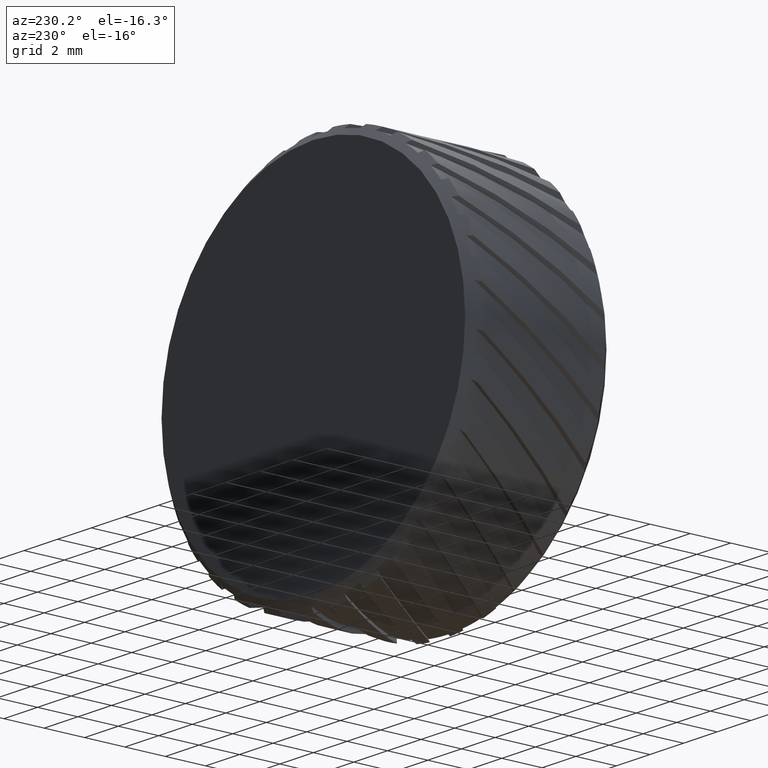
[diagram: clean part render]
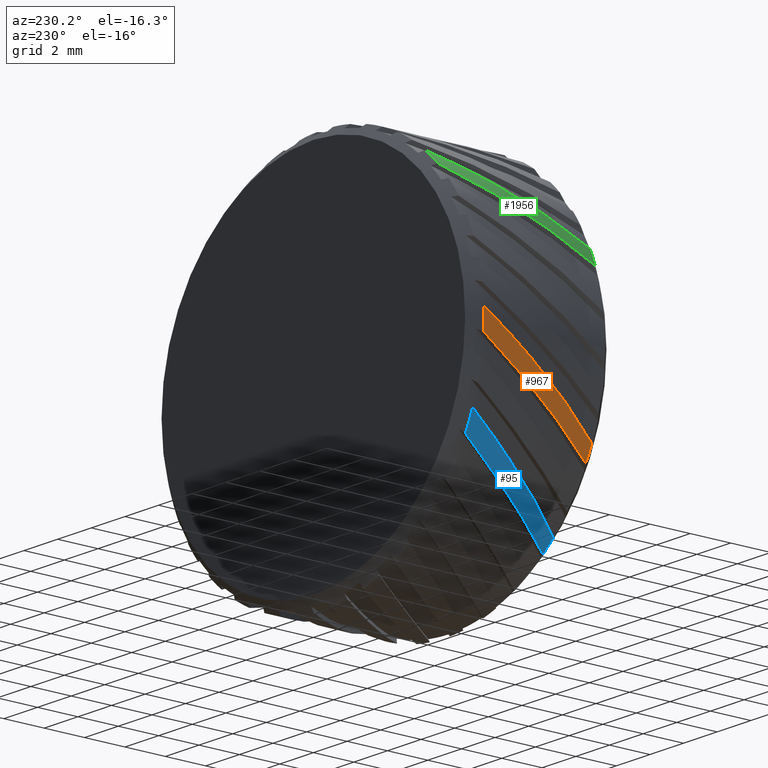
[diagram: same view with three faces highlighted in distinct colors, each labeled with its STEP entity id]
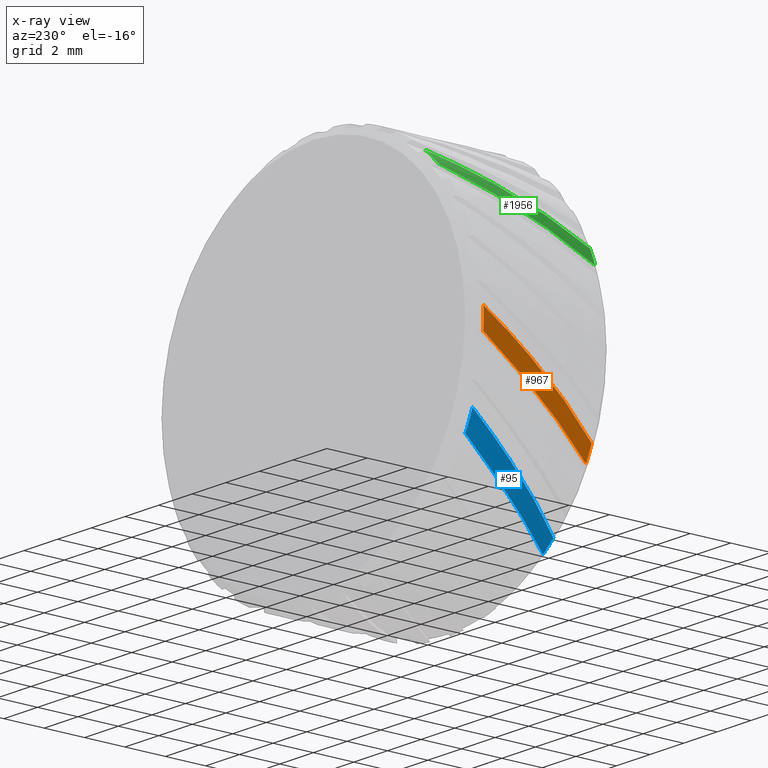
[diagram: x-ray of the same camera — body ghosted, the three highlighted faces saturated]
A machine part, auxiliary view with three faces highlighted in distinct colors.
The next image is the same camera in x-ray (body ghosted, the three faces saturated) — at least one of them is partly hidden behind the body in this view.
Their STEP definitions:

[orange] entity #967 — the highlighted cylindrical surface (partial cylindrical patch) has radius 9.525 mm, axis along (-0, 1, -0).
#543 = EDGE_CURVE ( 'NONE', #715, #3515, #994, .T. ) ;
#715 = VERTEX_POINT ( 'NONE', #2157 ) ;
#967 = ADVANCED_FACE ( 'NONE', ( #4590 ), #3784, .T. ) ;
#972 = DIRECTION ( 'NONE',  ( -0.0000000000000000000, 1.000000000000000000, -0.0000000000000000000 ) ) ;
#994 = CIRCLE ( 'NONE', #2143, 9.525000000000007500 ) ;
#1085 = CARTESIAN_POINT ( 'NONE',  ( -8.751611046570767300, -12.83088448223190900, -3.759644808960105800 ) ) ;
#1186 = CARTESIAN_POINT ( 'NONE',  ( -9.506146567473305000, -6.830884482231916800, -0.5990012000953320900 ) ) ;
#1440 = AXIS2_PLACEMENT_3D ( 'NONE', #2900, #3272, #1797 ) ;
#1502 = CARTESIAN_POINT ( 'NONE',  ( -9.047224436865079200, -11.01875353153871000, -3.277269106192825200 ) ) ;
#1633 = DIRECTION ( 'NONE',  ( 0.0000000000000000000, 0.0000000000000000000, 1.000000000000000000 ) ) ;
#1797 = DIRECTION ( 'NONE',  ( 0.0000000000000000000, 0.0000000000000000000, -1.000000000000000000 ) ) ;
#1806 = ORIENTED_EDGE ( 'NONE', *, *, #3292, .T. ) ;
#2068 = CARTESIAN_POINT ( 'NONE',  ( -9.515343617041804000, -6.830884482231916800, 0.4287899831175072700 ) ) ;
#2103 = CARTESIAN_POINT ( 'NONE',  ( -9.506146567473305000, -6.830884482231916800, -0.5990012000953320900 ) ) ;
#2143 = AXIS2_PLACEMENT_3D ( 'NONE', #3907, #972, #4223 ) ;
#2157 = CARTESIAN_POINT ( 'NONE',  ( -8.404118494825620900, -12.83088448223190700, -4.482902778884473500 ) ) ;
#2250 = CARTESIAN_POINT ( 'NONE',  ( -9.420215363949427700, -8.988001667723397100, -1.962729044525941800 ) ) ;
#2478 = VERTEX_POINT ( 'NONE', #4628 ) ;
#2555 = EDGE_CURVE ( 'NONE', #3515, #2478, #4399, .T. ) ;
#2740 = DIRECTION ( 'NONE',  ( -0.0000000000000000000, 1.000000000000000000, -0.0000000000000000000 ) ) ;
#2772 = CIRCLE ( 'NONE', #1440, 9.525000000000007500 ) ;
#2900 = CARTESIAN_POINT ( 'NONE',  ( 0.0000000000000000000, -6.830884482231916800, 0.0000000000000000000 ) ) ;
#2905 =( BOUNDED_CURVE ( )  B_SPLINE_CURVE ( 3, ( #1186, #2250, #1502, #3747 ),
 .UNSPECIFIED., .F., .F. ) 
 B_SPLINE_CURVE_WITH_KNOTS ( ( 4, 4 ),
 ( 1.738444872137412400, 2.165538831819180800 ),
 .UNSPECIFIED. ) 
 CURVE ( )  GEOMETRIC_REPRESENTATION_ITEM ( )  RATIONAL_B_SPLINE_CURVE ( ( 1.000000000000000000, 0.9848569072552557600, 0.9848569072552557600, 1.000000000000000000 ) ) 
 REPRESENTATION_ITEM ( '' )  );
#3203 = CARTESIAN_POINT ( 'NONE',  ( -9.321382424912270500, -11.09318665708719300, -2.433344655065367200 ) ) ;
#3272 = DIRECTION ( 'NONE',  ( 0.0000000000000000000, -1.000000000000000000, 0.0000000000000000000 ) ) ;
#3292 = EDGE_CURVE ( 'NONE', #2478, #3387, #2772, .T. ) ;
#3387 = VERTEX_POINT ( 'NONE', #2103 ) ;
#3459 = ORIENTED_EDGE ( 'NONE', *, *, #4204, .T. ) ;
#3507 = AXIS2_PLACEMENT_3D ( 'NONE', #4615, #2740, #1633 ) ;
#3515 = VERTEX_POINT ( 'NONE', #1085 ) ;
#3747 = CARTESIAN_POINT ( 'NONE',  ( -8.404118494825620900, -12.83088448223190700, -4.482902778884473500 ) ) ;
#3774 = ORIENTED_EDGE ( 'NONE', *, *, #543, .T. ) ;
#3784 = CYLINDRICAL_SURFACE ( 'NONE', #3507, 9.525000000000007500 ) ;
#3907 = CARTESIAN_POINT ( 'NONE',  ( 0.0000000000000000000, -12.83088448223190900, 0.0000000000000000000 ) ) ;
#3920 = EDGE_LOOP ( 'NONE', ( #1806, #3459, #3774, #4388 ) ) ;
#3965 = CARTESIAN_POINT ( 'NONE',  ( -9.580326420501759100, -9.058882983775598400, -1.013253274573770800 ) ) ;
#4204 = EDGE_CURVE ( 'NONE', #3387, #715, #2905, .T. ) ;
#4223 = DIRECTION ( 'NONE',  ( 0.0000000000000000000, 0.0000000000000000000, 1.000000000000000000 ) ) ;
#4388 = ORIENTED_EDGE ( 'NONE', *, *, #2555, .T. ) ;
#4399 =( BOUNDED_CURVE ( )  B_SPLINE_CURVE ( 3, ( #4682, #3203, #3965, #2068 ),
 .UNSPECIFIED., .F., .T. ) 
 B_SPLINE_CURVE_WITH_KNOTS ( ( 4, 4 ),
 ( 3.992473849274979200, 4.443262255015247000 ),
 .UNSPECIFIED. ) 
 CURVE ( )  GEOMETRIC_REPRESENTATION_ITEM ( )  RATIONAL_B_SPLINE_CURVE ( ( 1.000000000000000000, 0.9831373881089462400, 0.9831373881089462400, 1.000000000000000000 ) ) 
 REPRESENTATION_ITEM ( '' )  );
#4590 = FACE_OUTER_BOUND ( 'NONE', #3920, .T. ) ;
#4615 = CARTESIAN_POINT ( 'NONE',  ( 0.0000000000000000000, 46.02073106022621100, 0.0000000000000000000 ) ) ;
#4628 = CARTESIAN_POINT ( 'NONE',  ( -9.515343617041804000, -6.830884482231916800, 0.4287899831175072700 ) ) ;
#4682 = CARTESIAN_POINT ( 'NONE',  ( -8.751611046570767300, -12.83088448223190900, -3.759644808960105800 ) ) ;

[blue] entity #95 — the highlighted cylindrical surface (partial cylindrical patch) has radius 9.525 mm, axis along (-0, 1, -0).
#47 = CARTESIAN_POINT ( 'NONE',  ( -8.440661279074886300, -6.830884482231916800, -4.413712968910195000 ) ) ;
#79 = CARTESIAN_POINT ( 'NONE',  ( -5.854183448919465100, -12.83088448223190700, -7.513598415299926000 ) ) ;
#95 = ADVANCED_FACE ( 'NONE', ( #2371 ), #1799, .T. ) ;
#109 = CIRCLE ( 'NONE', #3914, 9.525000000000007500 ) ;
#123 =( BOUNDED_CURVE ( )  B_SPLINE_CURVE ( 3, ( #3980, #1099, #4438, #4412 ),
 .UNSPECIFIED., .F., .T. ) 
 B_SPLINE_CURVE_WITH_KNOTS ( ( 4, 4 ),
 ( 3.992473849274979200, 4.443262255015247000 ),
 .UNSPECIFIED. ) 
 CURVE ( )  GEOMETRIC_REPRESENTATION_ITEM ( )  RATIONAL_B_SPLINE_CURVE ( ( 1.000000000000000000, 0.9831373881089462400, 0.9831373881089462400, 1.000000000000000000 ) ) 
 REPRESENTATION_ITEM ( '' )  );
#301 = EDGE_LOOP ( 'NONE', ( #3700, #1108, #2718, #3638 ) ) ;
#513 = DIRECTION ( 'NONE',  ( 0.0000000000000000000, 0.0000000000000000000, 1.000000000000000000 ) ) ;
#919 = DIRECTION ( 'NONE',  ( 0.0000000000000000000, 0.0000000000000000000, -1.000000000000000000 ) ) ;
#1099 = CARTESIAN_POINT ( 'NONE',  ( -7.525776136780444300, -11.09318665708719300, -6.014318752848451400 ) ) ;
#1108 = ORIENTED_EDGE ( 'NONE', *, *, #3303, .T. ) ;
#1110 = EDGE_CURVE ( 'NONE', #4230, #1348, #2578, .T. ) ;
#1326 = CARTESIAN_POINT ( 'NONE',  ( -5.854183448919465100, -12.83088448223190700, -7.513598415299926000 ) ) ;
#1348 = VERTEX_POINT ( 'NONE', #79 ) ;
#1799 = CYLINDRICAL_SURFACE ( 'NONE', #3743, 9.525000000000007500 ) ;
#2269 = CIRCLE ( 'NONE', #4497, 9.525000000000007500 ) ;
#2277 = CARTESIAN_POINT ( 'NONE',  ( 0.0000000000000000000, 46.02073106022621100, 0.0000000000000000000 ) ) ;
#2371 = FACE_OUTER_BOUND ( 'NONE', #301, .T. ) ;
#2451 = EDGE_CURVE ( 'NONE', #2826, #4230, #2269, .T. ) ;
#2463 = CARTESIAN_POINT ( 'NONE',  ( -6.932065353862329400, -11.01875353153871000, -6.673772002038734100 ) ) ;
#2578 =( BOUNDED_CURVE ( )  B_SPLINE_CURVE ( 3, ( #3542, #3556, #2463, #1326 ),
 .UNSPECIFIED., .F., .T. ) 
 B_SPLINE_CURVE_WITH_KNOTS ( ( 4, 4 ),
 ( 1.738444872137412400, 2.165538831819180800 ),
 .UNSPECIFIED. ) 
 CURVE ( )  GEOMETRIC_REPRESENTATION_ITEM ( )  RATIONAL_B_SPLINE_CURVE ( ( 1.000000000000000000, 0.9848569072552557600, 0.9848569072552557600, 1.000000000000000000 ) ) 
 REPRESENTATION_ITEM ( '' )  );
#2588 = EDGE_CURVE ( 'NONE', #1348, #2768, #109, .T. ) ;
#2718 = ORIENTED_EDGE ( 'NONE', *, *, #2451, .T. ) ;
#2727 = DIRECTION ( 'NONE',  ( 0.0000000000000000000, -1.000000000000000000, 0.0000000000000000000 ) ) ;
#2763 = CARTESIAN_POINT ( 'NONE',  ( 0.0000000000000000000, -6.830884482231916800, 0.0000000000000000000 ) ) ;
#2768 = VERTEX_POINT ( 'NONE', #4593 ) ;
#2826 = VERTEX_POINT ( 'NONE', #3073 ) ;
#2932 = DIRECTION ( 'NONE',  ( 0.0000000000000000000, 0.0000000000000000000, 1.000000000000000000 ) ) ;
#3073 = CARTESIAN_POINT ( 'NONE',  ( -8.867103537574799100, -6.830884482231916800, -3.478519779148685000 ) ) ;
#3254 = CARTESIAN_POINT ( 'NONE',  ( 0.0000000000000000000, -12.83088448223190900, 0.0000000000000000000 ) ) ;
#3303 = EDGE_CURVE ( 'NONE', #2768, #2826, #123, .T. ) ;
#3406 = DIRECTION ( 'NONE',  ( -0.0000000000000000000, 1.000000000000000000, -0.0000000000000000000 ) ) ;
#3542 = CARTESIAN_POINT ( 'NONE',  ( -8.440661279074886300, -6.830884482231916800, -4.413712968910195000 ) ) ;
#3556 = CARTESIAN_POINT ( 'NONE',  ( -7.807481132913182800, -8.988001667723397100, -5.624588977393748300 ) ) ;
#3638 = ORIENTED_EDGE ( 'NONE', *, *, #1110, .T. ) ;
#3700 = ORIENTED_EDGE ( 'NONE', *, *, #2588, .T. ) ;
#3743 = AXIS2_PLACEMENT_3D ( 'NONE', #2277, #3406, #513 ) ;
#3914 = AXIS2_PLACEMENT_3D ( 'NONE', #3254, #4413, #2932 ) ;
#3980 = CARTESIAN_POINT ( 'NONE',  ( -6.465809209895737400, -12.83088448223190900, -6.994207336162378200 ) ) ;
#4230 = VERTEX_POINT ( 'NONE', #47 ) ;
#4412 = CARTESIAN_POINT ( 'NONE',  ( -8.867103537574799100, -6.830884482231916800, -3.478519779148685000 ) ) ;
#4413 = DIRECTION ( 'NONE',  ( -0.0000000000000000000, 1.000000000000000000, -0.0000000000000000000 ) ) ;
#4438 = CARTESIAN_POINT ( 'NONE',  ( -8.339936448697082800, -9.058882983775598400, -4.822322734273647000 ) ) ;
#4497 = AXIS2_PLACEMENT_3D ( 'NONE', #2763, #2727, #919 ) ;
#4593 = CARTESIAN_POINT ( 'NONE',  ( -6.465809209895737400, -12.83088448223190900, -6.994207336162378200 ) ) ;

[green] entity #1956 — the highlighted cylindrical surface (partial cylindrical patch) has radius 9.525 mm, axis along (-0, 1, -0).
#119 = FACE_OUTER_BOUND ( 'NONE', #4030, .T. ) ;
#184 = CARTESIAN_POINT ( 'NONE',  ( -6.805998259135172600, -6.830884482231916800, 6.663633595618018800 ) ) ;
#279 = CARTESIAN_POINT ( 'NONE',  ( -8.649931391620423700, -12.83088448223190900, 3.988021053136477300 ) ) ;
#520 = CARTESIAN_POINT ( 'NONE',  ( 0.0000000000000000000, -6.830884482231916800, 0.0000000000000000000 ) ) ;
#583 = VERTEX_POINT ( 'NONE', #184 ) ;
#796 = CARTESIAN_POINT ( 'NONE',  ( -8.489260351268324500, -11.01875353153871000, 4.530476960960973200 ) ) ;
#1113 =( BOUNDED_CURVE ( )  B_SPLINE_CURVE ( 3, ( #279, #4734, #3621, #1373 ),
 .UNSPECIFIED., .F., .T. ) 
 B_SPLINE_CURVE_WITH_KNOTS ( ( 4, 4 ),
 ( 3.992473849274979200, 4.443262255015247000 ),
 .UNSPECIFIED. ) 
 CURVE ( )  GEOMETRIC_REPRESENTATION_ITEM ( )  RATIONAL_B_SPLINE_CURVE ( ( 1.000000000000000000, 0.9831373881089462400, 0.9831373881089462400, 1.000000000000000000 ) ) 
 REPRESENTATION_ITEM ( '' )  );
#1129 = AXIS2_PLACEMENT_3D ( 'NONE', #2665, #3801, #3754 ) ;
#1171 = CARTESIAN_POINT ( 'NONE',  ( -6.048354587013745800, -6.830884482231916800, 7.358194873048005600 ) ) ;
#1191 = DIRECTION ( 'NONE',  ( 0.0000000000000000000, 0.0000000000000000000, 1.000000000000000000 ) ) ;
#1241 = DIRECTION ( 'NONE',  ( 0.0000000000000000000, -1.000000000000000000, 0.0000000000000000000 ) ) ;
#1282 = ORIENTED_EDGE ( 'NONE', *, *, #3582, .T. ) ;
#1373 = CARTESIAN_POINT ( 'NONE',  ( -6.048354587013745800, -6.830884482231916800, 7.358194873048005600 ) ) ;
#1404 = AXIS2_PLACEMENT_3D ( 'NONE', #520, #1241, #3831 ) ;
#1512 = CARTESIAN_POINT ( 'NONE',  ( -7.761946351764143200, -8.988001667723397100, 5.687262226919893100 ) ) ;
#1523 = ORIENTED_EDGE ( 'NONE', *, *, #4753, .T. ) ;
#1594 = ORIENTED_EDGE ( 'NONE', *, *, #2704, .T. ) ;
#1760 = VERTEX_POINT ( 'NONE', #1171 ) ;
#1956 = ADVANCED_FACE ( 'NONE', ( #119 ), #4198, .T. ) ;
#2012 = CIRCLE ( 'NONE', #1129, 9.525000000000007500 ) ;
#2153 = ORIENTED_EDGE ( 'NONE', *, *, #4325, .T. ) ;
#2665 = CARTESIAN_POINT ( 'NONE',  ( 0.0000000000000000000, -12.83088448223190900, 0.0000000000000000000 ) ) ;
#2679 = VERTEX_POINT ( 'NONE', #3329 ) ;
#2704 = EDGE_CURVE ( 'NONE', #583, #4362, #2965, .T. ) ;
#2965 =( BOUNDED_CURVE ( )  B_SPLINE_CURVE ( 3, ( #2978, #1512, #796, #3349 ),
 .UNSPECIFIED., .F., .T. ) 
 B_SPLINE_CURVE_WITH_KNOTS ( ( 4, 4 ),
 ( 1.738444872137412400, 2.165538831819180800 ),
 .UNSPECIFIED. ) 
 CURVE ( )  GEOMETRIC_REPRESENTATION_ITEM ( )  RATIONAL_B_SPLINE_CURVE ( ( 1.000000000000000000, 0.9848569072552557600, 0.9848569072552557600, 1.000000000000000000 ) ) 
 REPRESENTATION_ITEM ( '' )  );
#2978 = CARTESIAN_POINT ( 'NONE',  ( -6.805998259135172600, -6.830884482231916800, 6.663633595618018800 ) ) ;
#3020 = CARTESIAN_POINT ( 'NONE',  ( 0.0000000000000000000, 46.02073106022621100, 0.0000000000000000000 ) ) ;
#3329 = CARTESIAN_POINT ( 'NONE',  ( -8.649931391620423700, -12.83088448223190900, 3.988021053136477300 ) ) ;
#3349 = CARTESIAN_POINT ( 'NONE',  ( -8.954898907600583200, -12.83088448223190700, 3.245829717445764700 ) ) ;
#3400 = DIRECTION ( 'NONE',  ( -0.0000000000000000000, 1.000000000000000000, -0.0000000000000000000 ) ) ;
#3582 = EDGE_CURVE ( 'NONE', #2679, #1760, #1113, .T. ) ;
#3621 = CARTESIAN_POINT ( 'NONE',  ( -7.163483554763644200, -9.058882983775598400, 6.441571227769618900 ) ) ;
#3754 = DIRECTION ( 'NONE',  ( 0.0000000000000000000, 0.0000000000000000000, 1.000000000000000000 ) ) ;
#3773 = CIRCLE ( 'NONE', #1404, 9.525000000000007500 ) ;
#3801 = DIRECTION ( 'NONE',  ( -0.0000000000000000000, 1.000000000000000000, -0.0000000000000000000 ) ) ;
#3831 = DIRECTION ( 'NONE',  ( 0.0000000000000000000, 0.0000000000000000000, -1.000000000000000000 ) ) ;
#4030 = EDGE_LOOP ( 'NONE', ( #2153, #1594, #1523, #1282 ) ) ;
#4198 = CYLINDRICAL_SURFACE ( 'NONE', #4787, 9.525000000000007500 ) ;
#4325 = EDGE_CURVE ( 'NONE', #1760, #583, #3773, .T. ) ;
#4362 = VERTEX_POINT ( 'NONE', #4650 ) ;
#4650 = CARTESIAN_POINT ( 'NONE',  ( -8.954898907600583200, -12.83088448223190700, 3.245829717445764700 ) ) ;
#4734 = CARTESIAN_POINT ( 'NONE',  ( -8.045549763099245400, -11.09318665708719300, 5.298911730845520500 ) ) ;
#4753 = EDGE_CURVE ( 'NONE', #4362, #2679, #2012, .T. ) ;
#4787 = AXIS2_PLACEMENT_3D ( 'NONE', #3020, #3400, #1191 ) ;